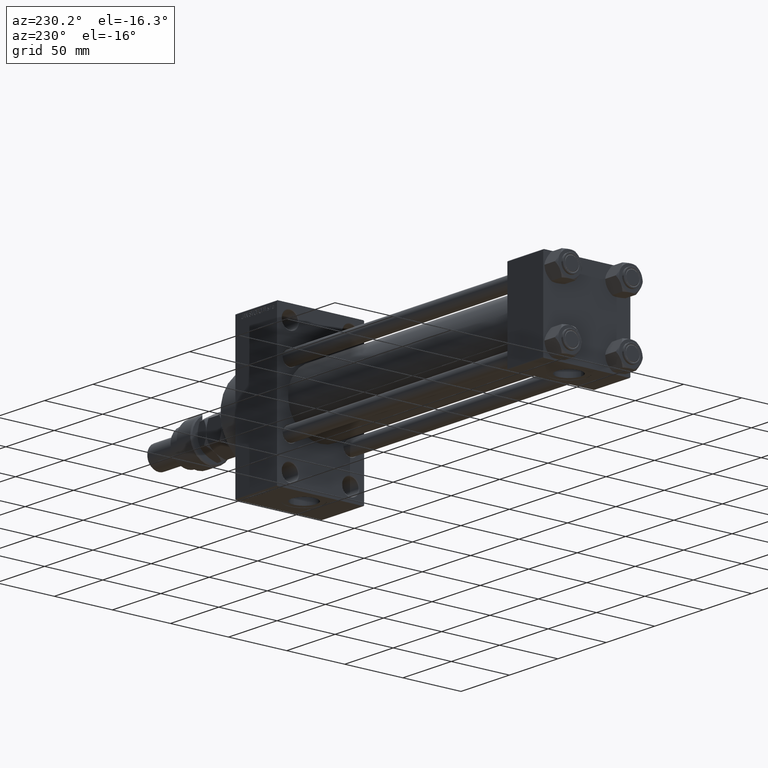
[diagram: clean part render]
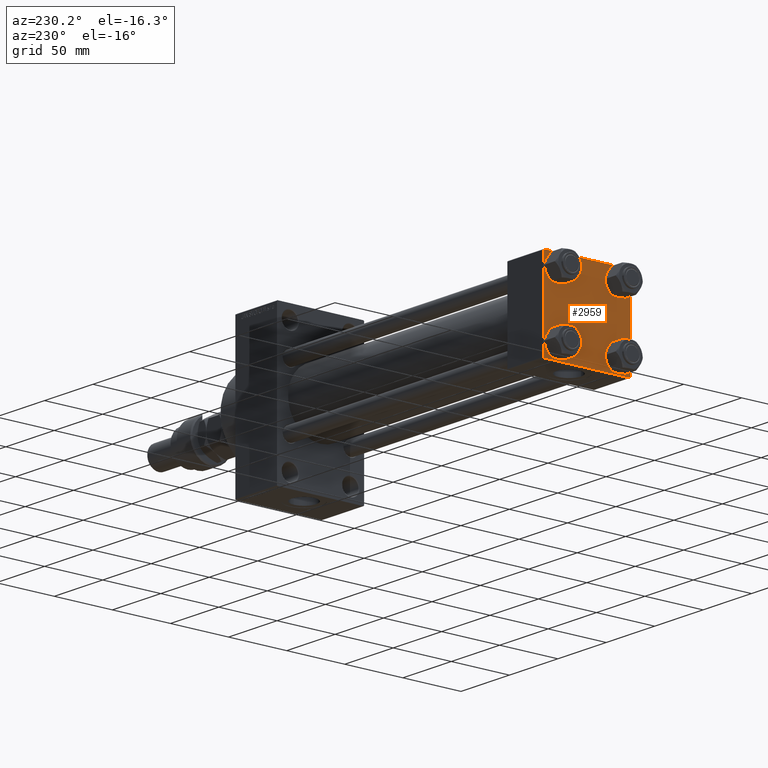
[diagram: same view with one face highlighted and labeled with its STEP entity id]
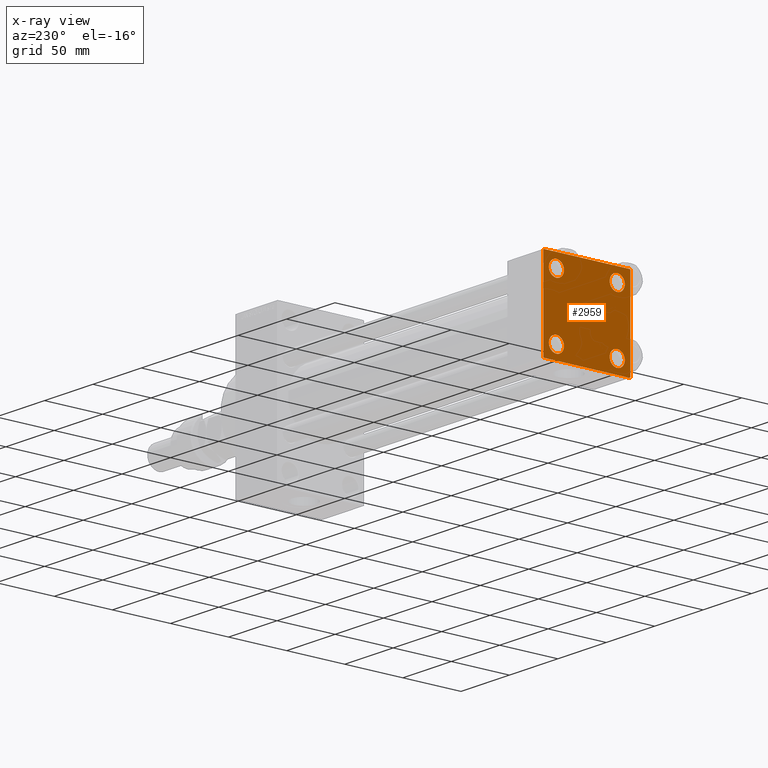
[diagram: x-ray of the same camera — body ghosted, the highlighted face saturated]
A machine part, auxiliary view. The second image highlights one B-rep face of the part: STEP entity #2959.
The next image is the same camera in x-ray: the body ghosted, the highlighted face saturated — about 0% of this face is hidden behind the body in this view.
In plain terms, the highlighted planar face has unit normal (-1, 0, 0).
Its self-contained STEP definition (entity closure, byte-faithful):
#356 = DIRECTION ( 'NONE',  ( 1.000000000000000000, -0.000000000000000000, 0.000000000000000000 ) ) ;
#507 = EDGE_LOOP ( 'NONE', ( #49620, #10159 ) ) ;
#704 = AXIS2_PLACEMENT_3D ( 'NONE', #11531, #8346, #51575 ) ;
#744 = VERTEX_POINT ( 'NONE', #32526 ) ;
#780 = CARTESIAN_POINT ( 'NONE',  ( 0.000000000000000000, -26.14999999999999147, 19.64999999999999147 ) ) ;
#1448 = VECTOR ( 'NONE', #6224, 1000.000000000000114 ) ;
#2959 = ADVANCED_FACE ( 'NONE', ( #19306, #19561, #39301, #12172, #24297 ), #44324, .T. ) ;
#3101 = CIRCLE ( 'NONE', #27498, 6.500000000000015987 ) ;
#3516 = CARTESIAN_POINT ( 'NONE',  ( 0.000000000000000000, -26.14999999999999147, -26.15000000000000924 ) ) ;
#3706 = CARTESIAN_POINT ( 'NONE',  ( 0.000000000000000000, 0.000000000000000000, 0.000000000000000000 ) ) ;
#3829 = CARTESIAN_POINT ( 'NONE',  ( 0.000000000000000000, 37.49999999999999289, 37.50000000000000000 ) ) ;
#4042 = DIRECTION ( 'NONE',  ( 0.000000000000000000, 0.000000000000000000, 1.000000000000000000 ) ) ;
#4230 = VERTEX_POINT ( 'NONE', #780 ) ;
#4359 = ORIENTED_EDGE ( 'NONE', *, *, #43714, .F. ) ;
#4560 = EDGE_LOOP ( 'NONE', ( #7576, #47607, #7194, #12436, #4359, #9622, #30693, #5159 ) ) ;
#4657 = CIRCLE ( 'NONE', #24026, 6.500000000000015987 ) ;
#4767 = CARTESIAN_POINT ( 'NONE',  ( 0.000000000000000000, -26.14999999999999147, 26.15000000000000924 ) ) ;
#4769 = DIRECTION ( 'NONE',  ( 1.000000000000000000, -0.000000000000000000, 0.000000000000000000 ) ) ;
#4934 = CIRCLE ( 'NONE', #11649, 6.500000000000023093 ) ;
#5159 = ORIENTED_EDGE ( 'NONE', *, *, #42683, .T. ) ;
#5744 = EDGE_CURVE ( 'NONE', #11473, #31474, #39946, .T. ) ;
#5934 = CARTESIAN_POINT ( 'NONE',  ( 0.000000000000000000, -37.00000000000002132, -37.50000000000000711 ) ) ;
#5992 = CARTESIAN_POINT ( 'NONE',  ( 0.000000000000000000, 37.49999999999999289, 37.00000000000000000 ) ) ;
#6133 = VERTEX_POINT ( 'NONE', #49576 ) ;
#6224 = DIRECTION ( 'NONE',  ( -0.000000000000000000, -0.7071067811865474617, -0.7071067811865474617 ) ) ;
#7194 = ORIENTED_EDGE ( 'NONE', *, *, #41602, .T. ) ;
#7278 = CIRCLE ( 'NONE', #16612, 6.500000000000015987 ) ;
#7361 = CARTESIAN_POINT ( 'NONE',  ( 0.000000000000000000, -37.00000000000000711, 37.49999999999999289 ) ) ;
#7447 = CARTESIAN_POINT ( 'NONE',  ( 0.000000000000000000, 36.99999999999999289, 37.50000000000000000 ) ) ;
#7576 = ORIENTED_EDGE ( 'NONE', *, *, #31588, .T. ) ;
#8346 = DIRECTION ( 'NONE',  ( 1.000000000000000000, -0.000000000000000000, 0.000000000000000000 ) ) ;
#8363 = LINE ( 'NONE', #32606, #19994 ) ;
#9149 = CARTESIAN_POINT ( 'NONE',  ( -0.000000000000000000, -37.25000000000000000, 37.25000000000000000 ) ) ;
#9270 = CARTESIAN_POINT ( 'NONE',  ( 0.000000000000000000, -26.14999999999999147, 26.15000000000000924 ) ) ;
#9537 = AXIS2_PLACEMENT_3D ( 'NONE', #25707, #37311, #41784 ) ;
#9622 = ORIENTED_EDGE ( 'NONE', *, *, #31935, .T. ) ;
#10159 = ORIENTED_EDGE ( 'NONE', *, *, #17861, .T. ) ;
#10764 = ORIENTED_EDGE ( 'NONE', *, *, #38131, .T. ) ;
#10990 = DIRECTION ( 'NONE',  ( 0.000000000000000000, -1.000000000000000000, -9.251858538542971581E-17 ) ) ;
#11386 = AXIS2_PLACEMENT_3D ( 'NONE', #3706, #15878, #35617 ) ;
#11473 = VERTEX_POINT ( 'NONE', #7447 ) ;
#11531 = CARTESIAN_POINT ( 'NONE',  ( 0.000000000000000000, 26.14999999999999858, 26.15000000000000213 ) ) ;
#11551 = CARTESIAN_POINT ( 'NONE',  ( 0.000000000000000000, -37.50000000000000711, 36.99999999999999289 ) ) ;
#11561 = CIRCLE ( 'NONE', #704, 6.500000000000023093 ) ;
#11649 = AXIS2_PLACEMENT_3D ( 'NONE', #44993, #23921, #48423 ) ;
#11968 = VERTEX_POINT ( 'NONE', #40054 ) ;
#12172 = FACE_BOUND ( 'NONE', #34236, .T. ) ;
#12410 = CARTESIAN_POINT ( 'NONE',  ( 0.000000000000000000, 36.99999999999997868, -37.50000000000000000 ) ) ;
#12436 = ORIENTED_EDGE ( 'NONE', *, *, #14455, .T. ) ;
#12606 = DIRECTION ( 'NONE',  ( 0.000000000000000000, 0.7071067811865474617, -0.7071067811865474617 ) ) ;
#13338 = ORIENTED_EDGE ( 'NONE', *, *, #47913, .T. ) ;
#13438 = DIRECTION ( 'NONE',  ( 0.000000000000000000, 0.000000000000000000, -1.000000000000000000 ) ) ;
#14455 = EDGE_CURVE ( 'NONE', #46096, #6133, #29592, .T. ) ;
#15055 = CARTESIAN_POINT ( 'NONE',  ( 0.000000000000000000, -26.14999999999999147, -32.65000000000002700 ) ) ;
#15203 = LINE ( 'NONE', #25557, #16577 ) ;
#15343 = CIRCLE ( 'NONE', #32134, 6.500000000000023093 ) ;
#15693 = CARTESIAN_POINT ( 'NONE',  ( 0.000000000000000000, 26.14999999999999858, -26.15000000000000213 ) ) ;
#15878 = DIRECTION ( 'NONE',  ( -1.000000000000000000, 0.000000000000000000, -0.000000000000000000 ) ) ;
#16401 = DIRECTION ( 'NONE',  ( 1.000000000000000000, -0.000000000000000000, 0.000000000000000000 ) ) ;
#16577 = VECTOR ( 'NONE', #49544, 1000.000000000000000 ) ;
#16612 = AXIS2_PLACEMENT_3D ( 'NONE', #15693, #356, #23600 ) ;
#16689 = VECTOR ( 'NONE', #24453, 1000.000000000000114 ) ;
#17861 = EDGE_CURVE ( 'NONE', #51422, #35828, #25639, .T. ) ;
#18121 = LINE ( 'NONE', #18386, #1448 ) ;
#18247 = DIRECTION ( 'NONE',  ( 0.000000000000000000, -0.7071067811865524577, 0.7071067811865426878 ) ) ;
#18271 = VECTOR ( 'NONE', #36291, 1000.000000000000000 ) ;
#18386 = CARTESIAN_POINT ( 'NONE',  ( 0.000000000000000000, 37.24999999999998579, -37.24999999999998579 ) ) ;
#19032 = VERTEX_POINT ( 'NONE', #21417 ) ;
#19233 = VERTEX_POINT ( 'NONE', #12410 ) ;
#19306 = FACE_BOUND ( 'NONE', #28693, .T. ) ;
#19411 = ORIENTED_EDGE ( 'NONE', *, *, #29711, .T. ) ;
#19561 = FACE_BOUND ( 'NONE', #507, .T. ) ;
#19928 = VECTOR ( 'NONE', #10990, 1000.000000000000000 ) ;
#19994 = VECTOR ( 'NONE', #12606, 1000.000000000000114 ) ;
#20612 = DIRECTION ( 'NONE',  ( 0.000000000000000000, 0.000000000000000000, 1.000000000000000000 ) ) ;
#21325 = VECTOR ( 'NONE', #18247, 1000.000000000000000 ) ;
#21399 = DIRECTION ( 'NONE',  ( 0.000000000000000000, 0.000000000000000000, 1.000000000000000000 ) ) ;
#21417 = CARTESIAN_POINT ( 'NONE',  ( 0.000000000000000000, -26.14999999999999147, 32.65000000000003411 ) ) ;
#23600 = DIRECTION ( 'NONE',  ( 0.000000000000000000, 0.000000000000000000, 1.000000000000000000 ) ) ;
#23837 = DIRECTION ( 'NONE',  ( 1.000000000000000000, -0.000000000000000000, 0.000000000000000000 ) ) ;
#23921 = DIRECTION ( 'NONE',  ( 1.000000000000000000, -0.000000000000000000, 0.000000000000000000 ) ) ;
#24026 = AXIS2_PLACEMENT_3D ( 'NONE', #38883, #46796, #50742 ) ;
#24297 = FACE_OUTER_BOUND ( 'NONE', #4560, .T. ) ;
#24453 = DIRECTION ( 'NONE',  ( -0.000000000000000000, 0.7071067811865474617, 0.7071067811865474617 ) ) ;
#24774 = VERTEX_POINT ( 'NONE', #5992 ) ;
#25314 = CARTESIAN_POINT ( 'NONE',  ( 0.000000000000000000, 26.14999999999999858, 32.65000000000002700 ) ) ;
#25557 = CARTESIAN_POINT ( 'NONE',  ( 0.000000000000000000, -37.50000000000000711, 37.49999999999999289 ) ) ;
#25639 = CIRCLE ( 'NONE', #9537, 6.500000000000015987 ) ;
#25707 = CARTESIAN_POINT ( 'NONE',  ( 0.000000000000000000, -26.14999999999999147, -26.15000000000000924 ) ) ;
#26236 = EDGE_CURVE ( 'NONE', #35458, #744, #7278, .T. ) ;
#26877 = CARTESIAN_POINT ( 'NONE',  ( 0.000000000000000000, 26.14999999999999858, -19.64999999999998792 ) ) ;
#27498 = AXIS2_PLACEMENT_3D ( 'NONE', #3516, #23837, #4042 ) ;
#27837 = EDGE_CURVE ( 'NONE', #50405, #19233, #18121, .T. ) ;
#28693 = EDGE_LOOP ( 'NONE', ( #29597, #40990 ) ) ;
#29592 = LINE ( 'NONE', #49357, #21325 ) ;
#29597 = ORIENTED_EDGE ( 'NONE', *, *, #37217, .T. ) ;
#29711 = EDGE_CURVE ( 'NONE', #33071, #11968, #11561, .T. ) ;
#30693 = ORIENTED_EDGE ( 'NONE', *, *, #5744, .F. ) ;
#31474 = VERTEX_POINT ( 'NONE', #7361 ) ;
#31588 = EDGE_CURVE ( 'NONE', #24774, #50405, #40572, .T. ) ;
#31756 = CIRCLE ( 'NONE', #45247, 6.500000000000023093 ) ;
#31935 = EDGE_CURVE ( 'NONE', #42677, #31474, #45265, .T. ) ;
#32134 = AXIS2_PLACEMENT_3D ( 'NONE', #4767, #16401, #20612 ) ;
#32526 = CARTESIAN_POINT ( 'NONE',  ( 0.000000000000000000, 26.14999999999999858, -32.65000000000001990 ) ) ;
#32606 = CARTESIAN_POINT ( 'NONE',  ( 0.000000000000000000, 37.24999999999999289, 37.24999999999999289 ) ) ;
#33071 = VERTEX_POINT ( 'NONE', #25314 ) ;
#34236 = EDGE_LOOP ( 'NONE', ( #19411, #13338 ) ) ;
#35458 = VERTEX_POINT ( 'NONE', #26877 ) ;
#35617 = DIRECTION ( 'NONE',  ( -0.000000000000000000, 0.000000000000000000, 1.000000000000000000 ) ) ;
#35828 = VERTEX_POINT ( 'NONE', #36722 ) ;
#36032 = CARTESIAN_POINT ( 'NONE',  ( 0.000000000000000000, 37.49999999999999289, -37.50000000000000000 ) ) ;
#36215 = EDGE_LOOP ( 'NONE', ( #51327, #10764 ) ) ;
#36291 = DIRECTION ( 'NONE',  ( 0.000000000000000000, -1.000000000000000000, -9.251858538542972814E-17 ) ) ;
#36722 = CARTESIAN_POINT ( 'NONE',  ( 0.000000000000000000, -26.14999999999999147, -19.64999999999999503 ) ) ;
#37217 = EDGE_CURVE ( 'NONE', #19032, #4230, #15343, .T. ) ;
#37311 = DIRECTION ( 'NONE',  ( 1.000000000000000000, -0.000000000000000000, 0.000000000000000000 ) ) ;
#38131 = EDGE_CURVE ( 'NONE', #744, #35458, #4657, .T. ) ;
#38883 = CARTESIAN_POINT ( 'NONE',  ( 0.000000000000000000, 26.14999999999999858, -26.15000000000000213 ) ) ;
#39301 = FACE_BOUND ( 'NONE', #36215, .T. ) ;
#39946 = LINE ( 'NONE', #3829, #19928 ) ;
#40054 = CARTESIAN_POINT ( 'NONE',  ( 0.000000000000000000, 26.14999999999999858, 19.64999999999998437 ) ) ;
#40245 = CARTESIAN_POINT ( 'NONE',  ( 0.000000000000000000, 37.49999999999999289, -36.99999999999998579 ) ) ;
#40572 = LINE ( 'NONE', #41101, #50337 ) ;
#40990 = ORIENTED_EDGE ( 'NONE', *, *, #46502, .T. ) ;
#41101 = CARTESIAN_POINT ( 'NONE',  ( 0.000000000000000000, 37.49999999999999289, 37.50000000000000000 ) ) ;
#41602 = EDGE_CURVE ( 'NONE', #19233, #46096, #47380, .T. ) ;
#41784 = DIRECTION ( 'NONE',  ( 0.000000000000000000, 0.000000000000000000, 1.000000000000000000 ) ) ;
#42677 = VERTEX_POINT ( 'NONE', #11551 ) ;
#42683 = EDGE_CURVE ( 'NONE', #11473, #24774, #8363, .T. ) ;
#43714 = EDGE_CURVE ( 'NONE', #42677, #6133, #15203, .T. ) ;
#44324 = PLANE ( 'NONE',  #11386 ) ;
#44993 = CARTESIAN_POINT ( 'NONE',  ( 0.000000000000000000, 26.14999999999999858, 26.15000000000000213 ) ) ;
#45225 = EDGE_CURVE ( 'NONE', #35828, #51422, #3101, .T. ) ;
#45247 = AXIS2_PLACEMENT_3D ( 'NONE', #9270, #4769, #21399 ) ;
#45265 = LINE ( 'NONE', #9149, #16689 ) ;
#46096 = VERTEX_POINT ( 'NONE', #5934 ) ;
#46502 = EDGE_CURVE ( 'NONE', #4230, #19032, #31756, .T. ) ;
#46796 = DIRECTION ( 'NONE',  ( 1.000000000000000000, -0.000000000000000000, 0.000000000000000000 ) ) ;
#47380 = LINE ( 'NONE', #36032, #18271 ) ;
#47607 = ORIENTED_EDGE ( 'NONE', *, *, #27837, .T. ) ;
#47913 = EDGE_CURVE ( 'NONE', #11968, #33071, #4934, .T. ) ;
#48423 = DIRECTION ( 'NONE',  ( 0.000000000000000000, 0.000000000000000000, 1.000000000000000000 ) ) ;
#49357 = CARTESIAN_POINT ( 'NONE',  ( 0.000000000000000000, -37.24999999999975842, -37.25000000000027001 ) ) ;
#49544 = DIRECTION ( 'NONE',  ( 0.000000000000000000, 9.251858538542971581E-17, -1.000000000000000000 ) ) ;
#49576 = CARTESIAN_POINT ( 'NONE',  ( 0.000000000000000000, -37.50000000000000000, -37.00000000000003553 ) ) ;
#49620 = ORIENTED_EDGE ( 'NONE', *, *, #45225, .T. ) ;
#50337 = VECTOR ( 'NONE', #13438, 1000.000000000000000 ) ;
#50405 = VERTEX_POINT ( 'NONE', #40245 ) ;
#50742 = DIRECTION ( 'NONE',  ( 0.000000000000000000, 0.000000000000000000, 1.000000000000000000 ) ) ;
#51327 = ORIENTED_EDGE ( 'NONE', *, *, #26236, .T. ) ;
#51422 = VERTEX_POINT ( 'NONE', #15055 ) ;
#51575 = DIRECTION ( 'NONE',  ( 0.000000000000000000, 0.000000000000000000, 1.000000000000000000 ) ) ;